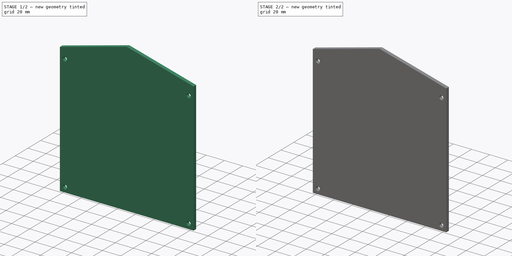
[diagram: build sequence overview — one tinted view per stage of 2, left to right]
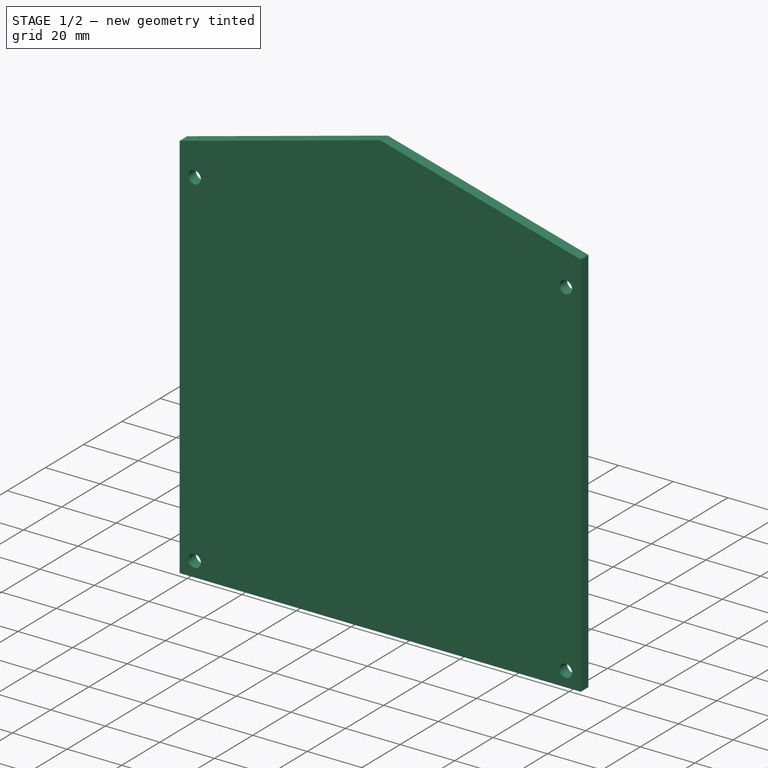
[diagram: stage 1 of 2 — iso view after this stage's code; geometry added in this stage tinted green]
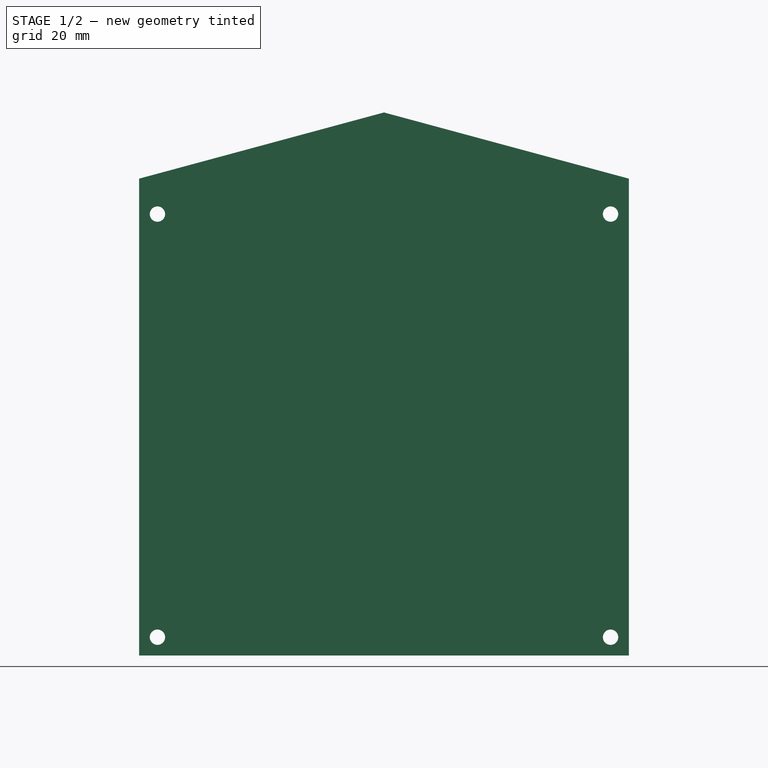
[diagram: stage 1 of 2 — front view after this stage's code; geometry added in this stage tinted green]
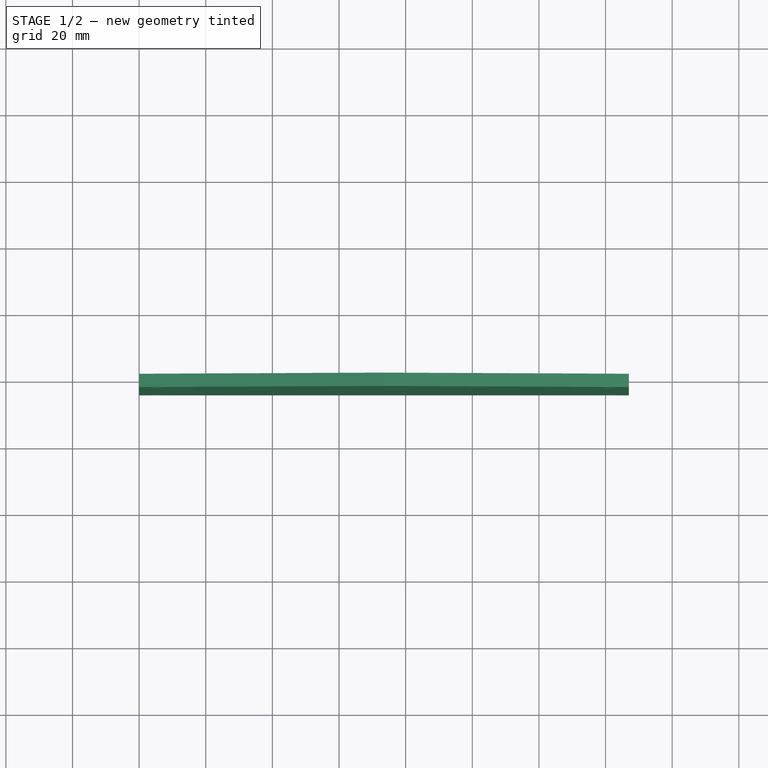
[diagram: stage 1 of 2 — top view after this stage's code; geometry added in this stage tinted green]
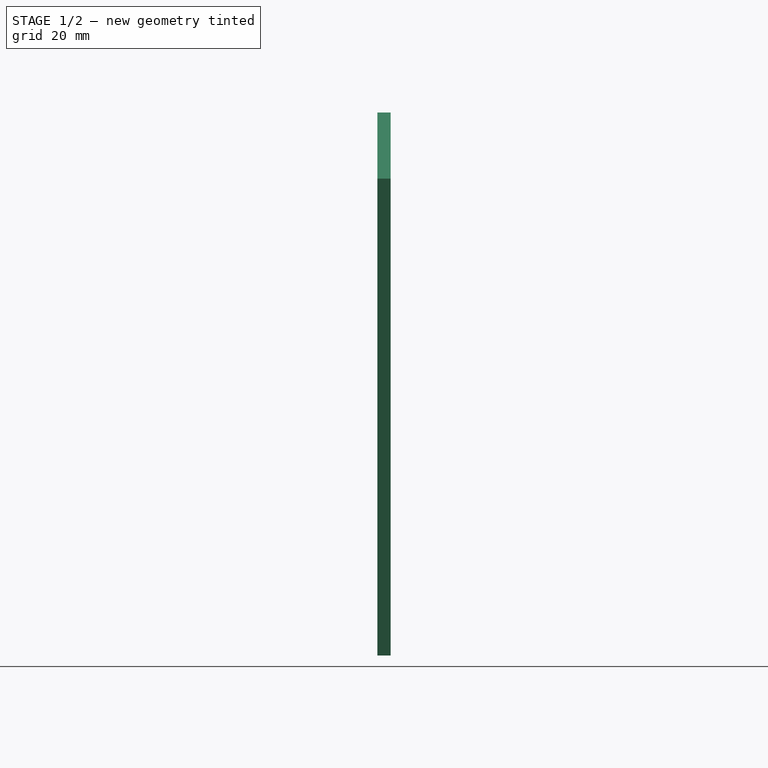
[diagram: stage 1 of 2 — right view after this stage's code; geometry added in this stage tinted green]
FCSTD DOCUMENT  (FreeCAD 0.20R29177 +426 (Git))
Label: back_panel
License: All rights reserved
LicenseURL: http://en.wikipedia.org/wiki/All_rights_reserved
objects: Sketcher::SketchObject×3, PartDesign::Pad×2, PartDesign::CoordinateSystem×2, PartDesign::Pocket×1, PartDesign::Body×1, App::Part×1
note: 12 computed .brp shape members not serialized (recipe doc carries the construction recipe); baked Part::Feature solids carry a one-line shape summary decoded from their .brp

FEATURE [Sketcher::SketchObject] Sketch
  FullyConstrained = true
  MapMode = 5
  Placement = pos=(0,0,0) rot=(1,0,0;1.5708rad)
  Support = -> [XZ_Plane]
  sketch-geometry (14):
    g0: LineSegment StartX=-0.5 StartY=-0.5 StartZ=0 EndX=-0.5 EndY=143.5 EndZ=0
    g1: LineSegment StartX=-0.5 StartY=143.5 StartZ=0 EndX=73.5 EndY=163.5 EndZ=0
    g2: LineSegment StartX=73.5 StartY=163.5 StartZ=0 EndX=147.5 EndY=143.5 EndZ=0
    g3: LineSegment StartX=147.5 StartY=143.5 StartZ=0 EndX=147.5 EndY=-0.5 EndZ=0
    g4: LineSegment StartX=147.5 StartY=-0.5 StartZ=0 EndX=-0.5 EndY=-0.5 EndZ=0
    g5: LineSegment StartX=0 StartY=0 StartZ=0 EndX=147 EndY=0 EndZ=0
    g6: LineSegment StartX=147 StartY=0 StartZ=0 EndX=147 EndY=143.135 EndZ=0
    g7: LineSegment StartX=147 StartY=143.135 StartZ=0 EndX=73.5 EndY=163 EndZ=0
    g8: LineSegment StartX=73.5 StartY=163 StartZ=0 EndX=0 EndY=143.135 EndZ=0
    g9: LineSegment StartX=0 StartY=143.135 StartZ=0 EndX=0 EndY=0 EndZ=0
    g10: LineSegment StartX=0 StartY=0 StartZ=0 EndX=0 EndY=-0.5 EndZ=0
    g11: LineSegment StartX=0 StartY=0 StartZ=0 EndX=-0.5 EndY=0 EndZ=0
    g12: LineSegment StartX=147 StartY=143.135 StartZ=0 EndX=147.5 EndY=143.135 EndZ=0
    g13: LineSegment StartX=73.5 StartY=163 StartZ=0 EndX=73.5 EndY=163.5 EndZ=0
  constraints (40):
    c: Coincident(g1,g0)
    c: Coincident(g2,g1)
    c: Coincident(g3,g2)
    c: Vertical(g3)
    c: Coincident(g4,g3)
    c: Horizontal(g4)
    c: DistanceY(g0,g0) = 144
    c: DistanceX(g4,g4) = 148
    c: Equal(g0,g3)
    c: Equal(g2,g1)
    c: DistanceY(g0,g1) = 20
    c: Horizontal(g5)
    c: Coincident(g6,g5)
    c: Vertical(g6)
    c: Coincident(g7,g6)
    c: Coincident(g8,g7)
    c: Coincident(g9,g8)
    c: Coincident(g9,g5)
    c: Vertical(g9)
    c: Coincident(g10,g5)
    c: PointOnObject(g10,g4)
    c: Coincident(g11,g5)
    c: PointOnObject(g11,g0)
    c: Horizontal(g11)
    c: Coincident(g12,g6)
    c: PointOnObject(g12,g3)
    c: Horizontal(g12)
    c: Coincident(g13,g7)
    c: Coincident(g13,g1)
    c: Vertical(g13)
    c: Equal(g12,g13)
    c: Equal(g13,g11)
    c: Equal(g11,g10)
    c: Vertical(g10)
    c: DistanceY(g10,g10) = 0.5
    c: Parallel(g8,g1)
    c: Parallel(g7,g2)
    c: Coincident(g4,g0)
    c: Coincident(g5,g-1)
    c: Vertical(g0)
FEATURE [PartDesign::Pad] Pad
  Direction = (0,-1,-2e-16)
  Length = 4
  Length2 = 10
  Placement = pos=(0,0,0) rot=(1,0,0;1.5708rad)
  Profile = -> Sketch
  ReferenceAxis = -> Sketch [N_Axis]
  Type = 0
FEATURE [Sketcher::SketchObject] Sketch001
  FullyConstrained = true
  MapMode = 5
  Placement = pos=(0,-4,-9e-16) rot=(1,0,0;1.5708rad)
  Support = -> [Pad]
  sketch-geometry (8):
    g0: Circle CenterX=5.5 CenterY=5.5 CenterZ=0 NormalX=0 NormalY=0 NormalZ=1 AngleXU=0 Radius=2.3
    g1: Circle CenterX=141.5 CenterY=5.5 CenterZ=0 NormalX=0 NormalY=0 NormalZ=1 AngleXU=0 Radius=2.3
    g2: Circle CenterX=141.5 CenterY=132.5 CenterZ=0 NormalX=0 NormalY=0 NormalZ=1 AngleXU=0 Radius=2.3
    g3: Circle CenterX=5.5 CenterY=132.5 CenterZ=0 NormalX=0 NormalY=0 NormalZ=1 AngleXU=0 Radius=2.3
    g4: LineSegment StartX=5.5 StartY=132.5 StartZ=0 EndX=141.5 EndY=132.5 EndZ=0
    g5: LineSegment StartX=141.5 StartY=132.5 StartZ=0 EndX=141.5 EndY=5.5 EndZ=0
    g6: LineSegment StartX=141.5 StartY=5.5 StartZ=0 EndX=5.5 EndY=5.5 EndZ=0
    g7: LineSegment StartX=5.5 StartY=5.5 StartZ=0 EndX=5.5 EndY=132.5 EndZ=0
  constraints (20):
    c: Equal(g2,g1)
    c: Equal(g1,g0)
    c: Equal(g0,g3)
    c: Coincident(g4,g5)
    c: Coincident(g5,g6)
    c: Coincident(g6,g7)
    c: Coincident(g7,g4)
    c: Horizontal(g4)
    c: Horizontal(g6)
    c: Vertical(g5)
    c: Vertical(g7)
    c: Coincident(g4,g3)
    c: Coincident(g5,g1)
    c: Coincident(g2,g4)
    c: Coincident(g0,g6)
    c: Diameter(g0) = 4.6
    c: DistanceX(g4,g4) = 136
    c: DistanceY(g7,g7) = 127
    c: DistanceX(g-1,g0) = 5.5
    c: DistanceY(g-1,g0) = 5.5
FEATURE [PartDesign::Pocket] Pocket
  BaseFeature = -> Pad
  Direction = (0,1,2e-16)
  Length = 5
  Length2 = 5
  Placement = pos=(0,0,0) rot=(1,0,0;1.5708rad)
  Profile = -> Sketch001
  ReferenceAxis = -> Sketch001 [N_Axis]
  Type = 0
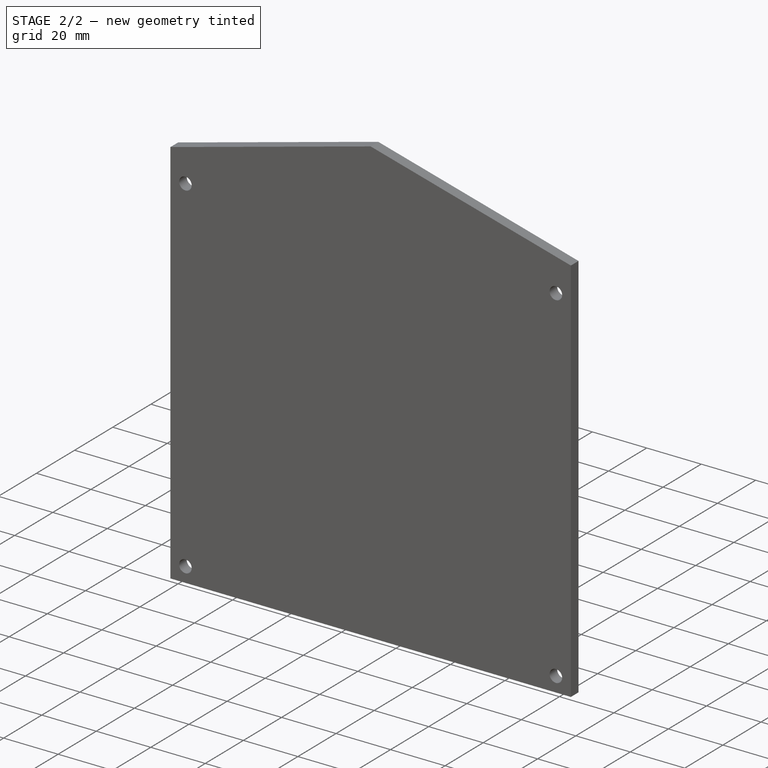
[diagram: stage 2 of 2 — iso view after this stage's code; geometry added in this stage tinted green]
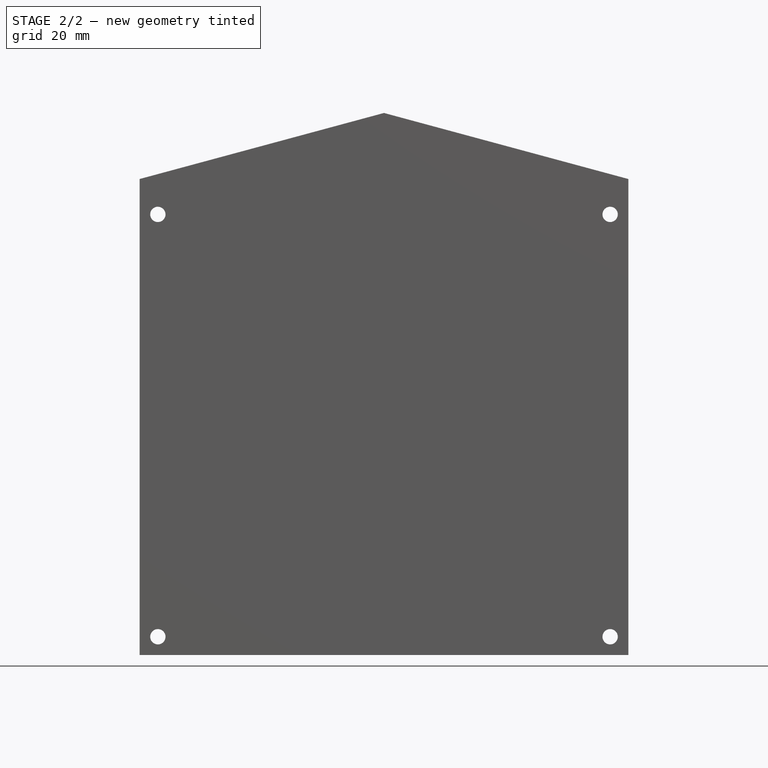
[diagram: stage 2 of 2 — front view after this stage's code; geometry added in this stage tinted green]
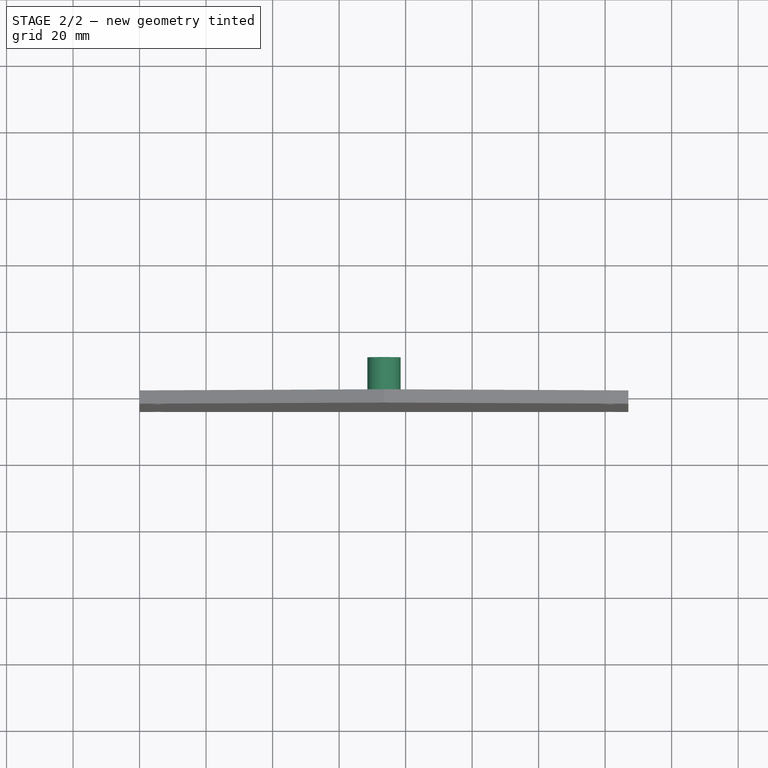
[diagram: stage 2 of 2 — top view after this stage's code; geometry added in this stage tinted green]
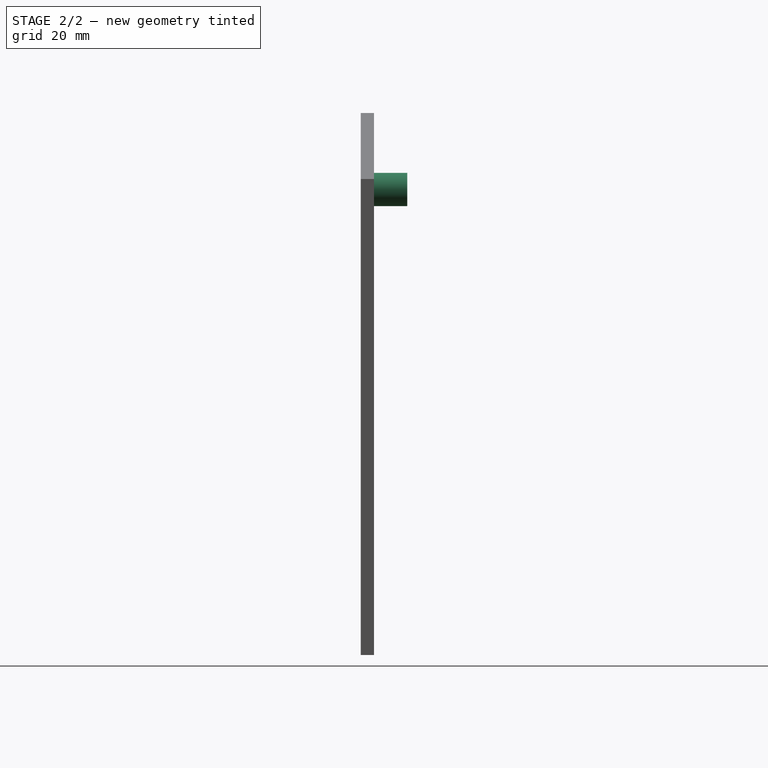
[diagram: stage 2 of 2 — right view after this stage's code; geometry added in this stage tinted green]
FEATURE [PartDesign::CoordinateSystem] LCS_0
  AttacherType = Attacher::AttachEngine3D
  MapMode = 2
  Support = -> [X_Axis001]
FEATURE [PartDesign::CoordinateSystem] LCS_1
  AttacherType = Attacher::AttachEngine3D
  MapMode = 11
  Placement = pos=(5.5,-4,5.5) rot=(-0.57735,0.57735,-0.57735;4.18879rad)
  Support = -> [Pocket]
FEATURE [Sketcher::SketchObject] Sketch002
  FullyConstrained = true
  MapMode = 5
  Placement = pos=(0,0,0) rot=(-1,0,0;1.5708rad)
  Support = -> [Pocket]
  sketch-geometry (1):
    g0: Circle CenterX=73.5 CenterY=-140 CenterZ=0 NormalX=0 NormalY=0 NormalZ=1 AngleXU=0 Radius=5
  constraints (3):
    c: Diameter(g0) = 10
    c: DistanceX(g-1,g0) = 73.5
    c: DistanceY(g0,g-1) = 140
FEATURE [PartDesign::Pad] Pad001
  BaseFeature = -> Pocket
  Direction = (0,1,2e-16)
  Length = 10
  Length2 = 10
  Placement = pos=(0,0,0) rot=(1,0,0;1.5708rad)
  Profile = -> Sketch002
  ReferenceAxis = -> Sketch002 [N_Axis]
  Type = 0
FEATURE [PartDesign::Body] Body
  Group = -> [Sketch,Pad,Sketch001,Pocket,Sketch002,Pad001]
  Origin = -> Origin
  Tip = -> Pad001
FEATURE [App::Part] back_panel
  Group = -> [LCS_0,Body,LCS_1]
  Origin = -> Origin001
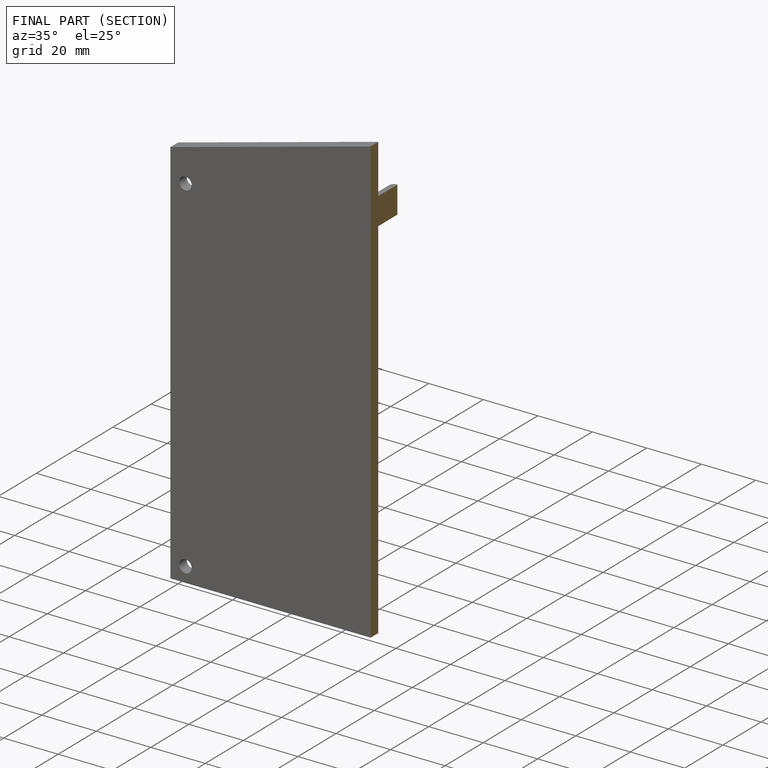
[diagram: finished part — half-section view (interior)]
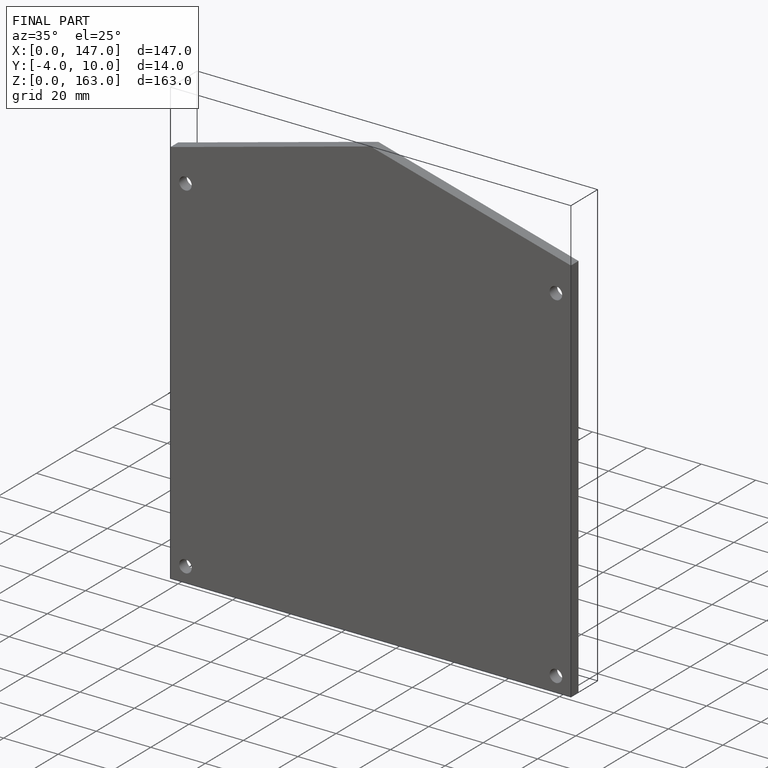
[diagram: finished part — iso view with bounding-box wireframe]
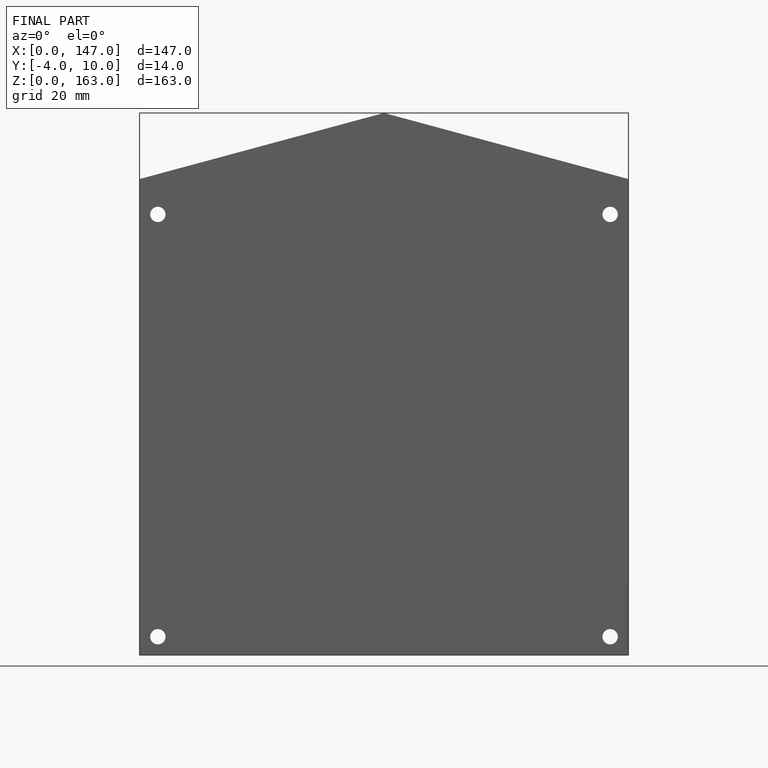
[diagram: finished part — front view with bounding-box wireframe]
